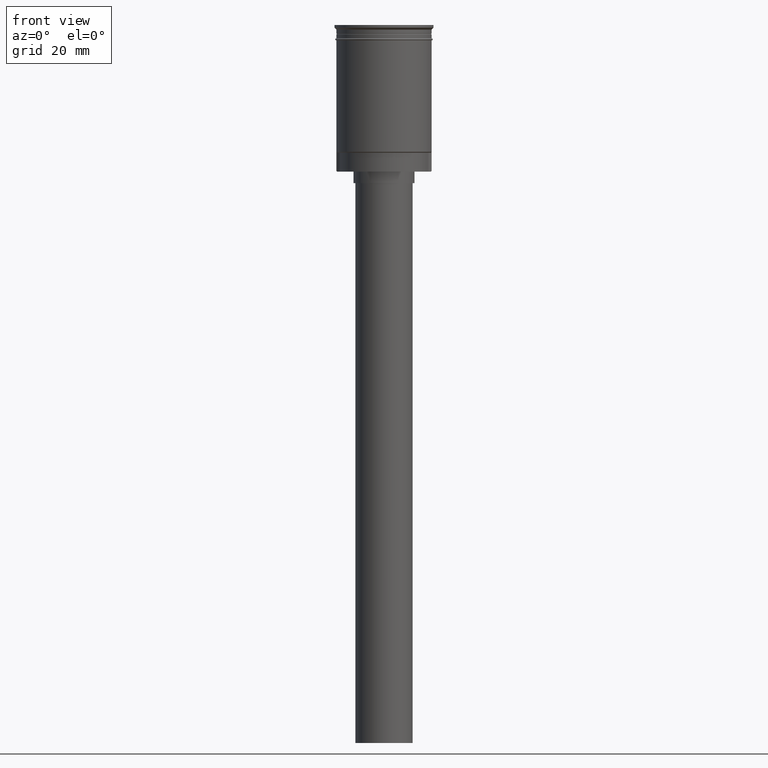
[diagram: clean part render]
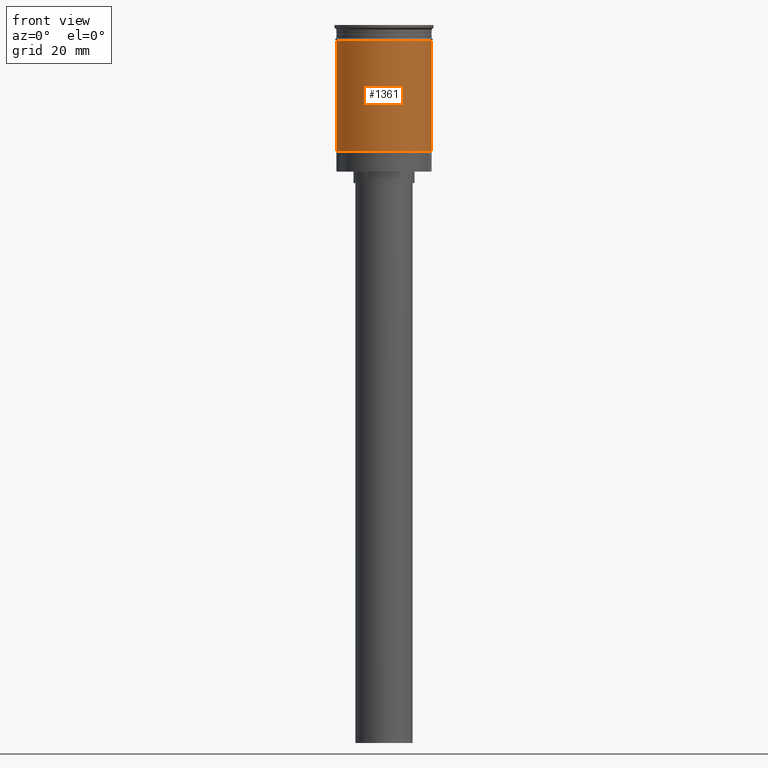
[diagram: same view with one face highlighted and labeled with its STEP entity id]
A machine part, front view. The second image highlights one B-rep face of the part: STEP entity #1361.
In plain terms, the highlighted cylindrical surface (partial cylindrical patch) has radius 12.5 mm, axis along (-0, -0, 1).
Its self-contained STEP definition (entity closure, byte-faithful):
#12 = CIRCLE ( 'NONE', #827, 12.49999999999999822 ) ;
#15 = DIRECTION ( 'NONE',  ( -0.000000000000000000, -0.000000000000000000, 1.000000000000000000 ) ) ;
#55 = ORIENTED_EDGE ( 'NONE', *, *, #97, .T. ) ;
#67 = CIRCLE ( 'NONE', #862, 12.49999999999999645 ) ;
#97 = EDGE_CURVE ( 'NONE', #813, #1098, #761, .T. ) ;
#230 = ORIENTED_EDGE ( 'NONE', *, *, #541, .F. ) ;
#343 = ORIENTED_EDGE ( 'NONE', *, *, #1430, .T. ) ;
#377 = FACE_OUTER_BOUND ( 'NONE', #559, .T. ) ;
#379 = CARTESIAN_POINT ( 'NONE',  ( -12.50000000000000000, 1.530808498934191521E-15, -3.999999999999996447 ) ) ;
#480 = DIRECTION ( 'NONE',  ( 1.000000000000000000, 0.000000000000000000, 0.000000000000000000 ) ) ;
#541 = EDGE_CURVE ( 'NONE', #972, #1098, #12, .T. ) ;
#559 = EDGE_LOOP ( 'NONE', ( #1475, #343, #55, #230 ) ) ;
#610 = DIRECTION ( 'NONE',  ( 1.000000000000000000, 0.000000000000000000, 0.000000000000000000 ) ) ;
#622 = VECTOR ( 'NONE', #1349, 1000.000000000000000 ) ;
#730 = DIRECTION ( 'NONE',  ( -0.000000000000000000, -0.000000000000000000, 1.000000000000000000 ) ) ;
#740 = CARTESIAN_POINT ( 'NONE',  ( 0.000000000000000000, 0.000000000000000000, 0.000000000000000000 ) ) ;
#743 = CARTESIAN_POINT ( 'NONE',  ( 12.49999999999999645, 0.000000000000000000, 0.000000000000000000 ) ) ;
#761 = LINE ( 'NONE', #743, #622 ) ;
#770 = CARTESIAN_POINT ( 'NONE',  ( 12.49999999999999822, 0.000000000000000000, -3.999999999999996447 ) ) ;
#790 = VERTEX_POINT ( 'NONE', #1061 ) ;
#793 = CARTESIAN_POINT ( 'NONE',  ( 12.49999999999999645, 1.530808498934191127E-15, -33.29999999999998295 ) ) ;
#813 = VERTEX_POINT ( 'NONE', #793 ) ;
#827 = AXIS2_PLACEMENT_3D ( 'NONE', #1248, #15, #480 ) ;
#862 = AXIS2_PLACEMENT_3D ( 'NONE', #1095, #1230, #1253 ) ;
#972 = VERTEX_POINT ( 'NONE', #379 ) ;
#986 = CARTESIAN_POINT ( 'NONE',  ( -12.49999999999999645, 1.530808498934191127E-15, 0.000000000000000000 ) ) ;
#1061 = CARTESIAN_POINT ( 'NONE',  ( -12.49999999999999289, 0.000000000000000000, -33.29999999999998295 ) ) ;
#1095 = CARTESIAN_POINT ( 'NONE',  ( 0.000000000000000000, 0.000000000000000000, -33.29999999999998295 ) ) ;
#1098 = VERTEX_POINT ( 'NONE', #770 ) ;
#1128 = AXIS2_PLACEMENT_3D ( 'NONE', #740, #730, #610 ) ;
#1230 = DIRECTION ( 'NONE',  ( -0.000000000000000000, -0.000000000000000000, 1.000000000000000000 ) ) ;
#1235 = VECTOR ( 'NONE', #1481, 1000.000000000000000 ) ;
#1248 = CARTESIAN_POINT ( 'NONE',  ( 0.000000000000000000, 0.000000000000000000, -3.999999999999996447 ) ) ;
#1253 = DIRECTION ( 'NONE',  ( -1.000000000000000000, 0.000000000000000000, 0.000000000000000000 ) ) ;
#1349 = DIRECTION ( 'NONE',  ( -0.000000000000000000, -0.000000000000000000, 1.000000000000000000 ) ) ;
#1361 = ADVANCED_FACE ( 'NONE', ( #377 ), #1467, .T. ) ;
#1399 = EDGE_CURVE ( 'NONE', #790, #972, #1459, .T. ) ;
#1430 = EDGE_CURVE ( 'NONE', #790, #813, #67, .T. ) ;
#1459 = LINE ( 'NONE', #986, #1235 ) ;
#1467 = CYLINDRICAL_SURFACE ( 'NONE', #1128, 12.49999999999999645 ) ;
#1475 = ORIENTED_EDGE ( 'NONE', *, *, #1399, .F. ) ;
#1481 = DIRECTION ( 'NONE',  ( -0.000000000000000000, -0.000000000000000000, 1.000000000000000000 ) ) ;